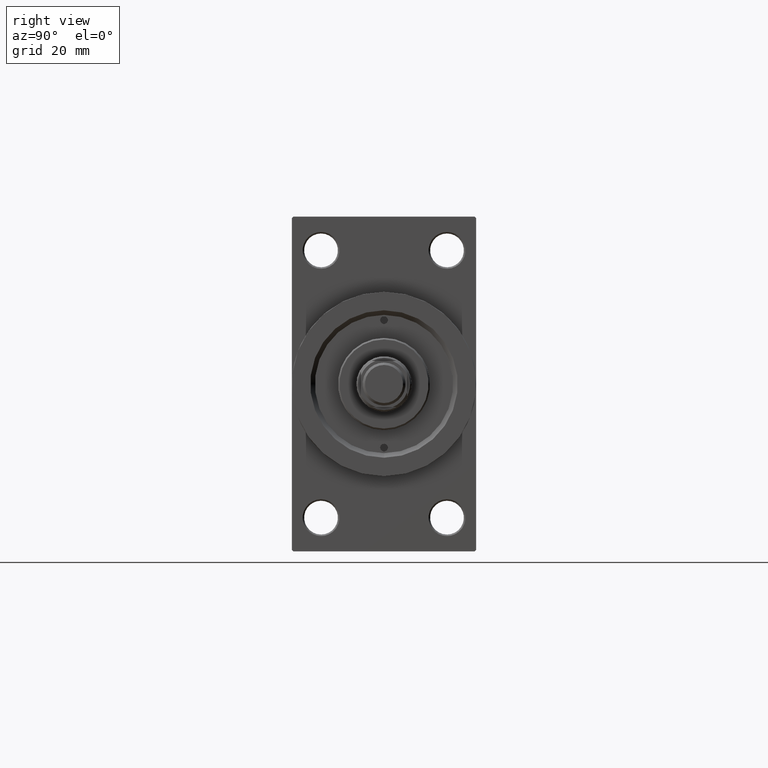
[diagram: clean part render]
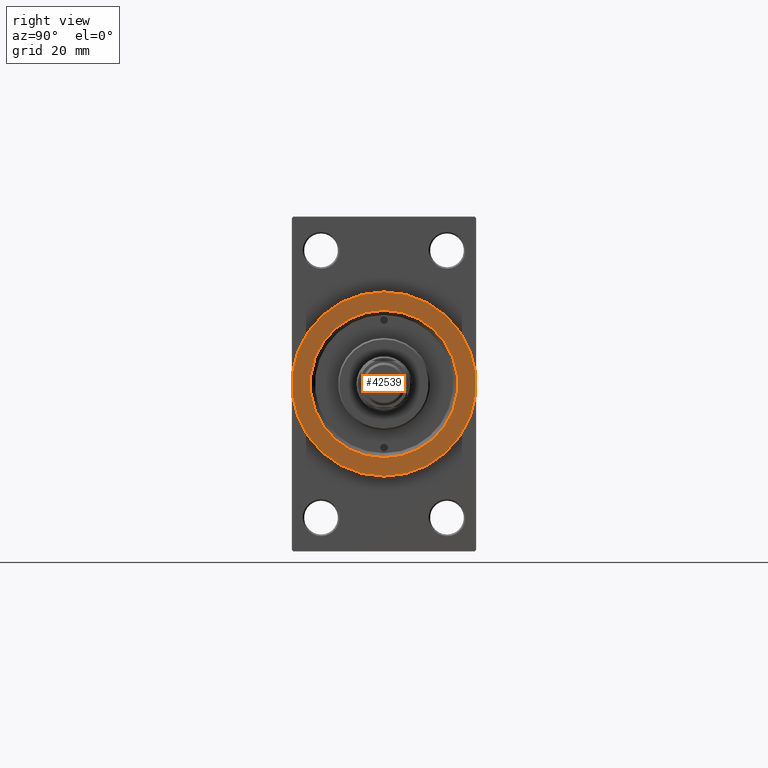
[diagram: same view with one face highlighted and labeled with its STEP entity id]
A machine part, right view. The second image highlights one B-rep face of the part: STEP entity #42539.
In plain terms, the highlighted planar face has unit normal (1, 0, 0).
Its self-contained STEP definition (entity closure, byte-faithful):
#2258 = CARTESIAN_POINT ( 'NONE',  ( 148.0000000000000284, 0.000000000000000000, 30.00000000000000000 ) ) ;
#3724 = EDGE_CURVE ( 'NONE', #43200, #21578, #9424, .T. ) ;
#3750 = CIRCLE ( 'NONE', #37809, 23.99999999999996803 ) ;
#6049 = CARTESIAN_POINT ( 'NONE',  ( 148.0000000000000284, 0.000000000000000000, -23.99999999999996803 ) ) ;
#6485 = CARTESIAN_POINT ( 'NONE',  ( 148.0000000000000284, 0.000000000000000000, 0.000000000000000000 ) ) ;
#7529 = CIRCLE ( 'NONE', #16827, 23.99999999999996803 ) ;
#7783 = CARTESIAN_POINT ( 'NONE',  ( 148.0000000000000284, 3.673940397442059178E-15, -30.00000000000000000 ) ) ;
#8883 = AXIS2_PLACEMENT_3D ( 'NONE', #18033, #40302, #18972 ) ;
#9424 = CIRCLE ( 'NONE', #20247, 30.00000000000000000 ) ;
#9573 = EDGE_LOOP ( 'NONE', ( #29326, #43810 ) ) ;
#10333 = EDGE_CURVE ( 'NONE', #21578, #43200, #42135, .T. ) ;
#10578 = DIRECTION ( 'NONE',  ( 1.000000000000000000, 0.000000000000000000, 0.000000000000000000 ) ) ;
#10818 = CARTESIAN_POINT ( 'NONE',  ( 148.0000000000000284, 0.000000000000000000, 0.000000000000000000 ) ) ;
#12118 = VERTEX_POINT ( 'NONE', #39088 ) ;
#12415 = AXIS2_PLACEMENT_3D ( 'NONE', #10818, #32879, #14692 ) ;
#14473 = DIRECTION ( 'NONE',  ( -1.000000000000000000, -0.000000000000000000, -0.000000000000000000 ) ) ;
#14692 = DIRECTION ( 'NONE',  ( 0.000000000000000000, 0.000000000000000000, -1.000000000000000000 ) ) ;
#16827 = AXIS2_PLACEMENT_3D ( 'NONE', #6485, #36027, #28292 ) ;
#17392 = DIRECTION ( 'NONE',  ( 0.000000000000000000, 0.000000000000000000, -1.000000000000000000 ) ) ;
#17606 = DIRECTION ( 'NONE',  ( 0.000000000000000000, 0.000000000000000000, -1.000000000000000000 ) ) ;
#18033 = CARTESIAN_POINT ( 'NONE',  ( 148.0000000000000284, 0.000000000000000000, 0.000000000000000000 ) ) ;
#18087 = FACE_OUTER_BOUND ( 'NONE', #42725, .T. ) ;
#18972 = DIRECTION ( 'NONE',  ( 0.000000000000000000, 0.000000000000000000, -1.000000000000000000 ) ) ;
#19866 = EDGE_CURVE ( 'NONE', #30977, #12118, #3750, .T. ) ;
#20247 = AXIS2_PLACEMENT_3D ( 'NONE', #40603, #10578, #17606 ) ;
#21578 = VERTEX_POINT ( 'NONE', #2258 ) ;
#28292 = DIRECTION ( 'NONE',  ( 0.000000000000000000, 0.000000000000000000, -1.000000000000000000 ) ) ;
#29226 = FACE_BOUND ( 'NONE', #9573, .T. ) ;
#29326 = ORIENTED_EDGE ( 'NONE', *, *, #19866, .T. ) ;
#30977 = VERTEX_POINT ( 'NONE', #6049 ) ;
#32324 = ORIENTED_EDGE ( 'NONE', *, *, #3724, .T. ) ;
#32400 = PLANE ( 'NONE',  #12415 ) ;
#32879 = DIRECTION ( 'NONE',  ( 1.000000000000000000, 0.000000000000000000, 0.000000000000000000 ) ) ;
#36027 = DIRECTION ( 'NONE',  ( -1.000000000000000000, -0.000000000000000000, -0.000000000000000000 ) ) ;
#36047 = EDGE_CURVE ( 'NONE', #12118, #30977, #7529, .T. ) ;
#37809 = AXIS2_PLACEMENT_3D ( 'NONE', #47665, #14473, #17392 ) ;
#39088 = CARTESIAN_POINT ( 'NONE',  ( 148.0000000000000284, 2.939152317953644345E-15, 23.99999999999996803 ) ) ;
#40302 = DIRECTION ( 'NONE',  ( 1.000000000000000000, 0.000000000000000000, 0.000000000000000000 ) ) ;
#40603 = CARTESIAN_POINT ( 'NONE',  ( 148.0000000000000284, 0.000000000000000000, 0.000000000000000000 ) ) ;
#42135 = CIRCLE ( 'NONE', #8883, 30.00000000000000000 ) ;
#42539 = ADVANCED_FACE ( 'NONE', ( #29226, #18087 ), #32400, .T. ) ;
#42725 = EDGE_LOOP ( 'NONE', ( #46587, #32324 ) ) ;
#43200 = VERTEX_POINT ( 'NONE', #7783 ) ;
#43810 = ORIENTED_EDGE ( 'NONE', *, *, #36047, .T. ) ;
#46587 = ORIENTED_EDGE ( 'NONE', *, *, #10333, .T. ) ;
#47665 = CARTESIAN_POINT ( 'NONE',  ( 148.0000000000000284, 0.000000000000000000, 0.000000000000000000 ) ) ;